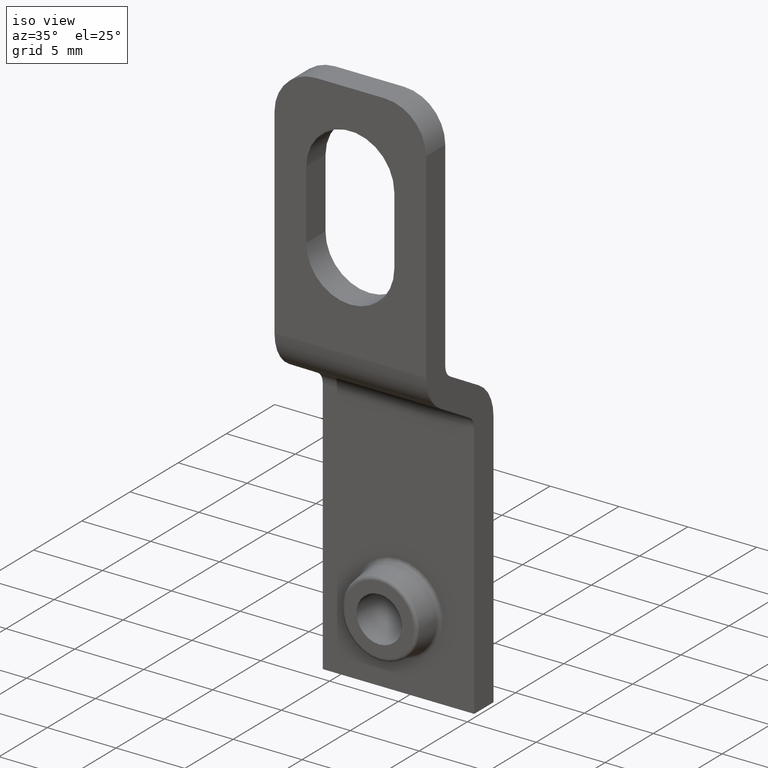
[diagram: clean part render]
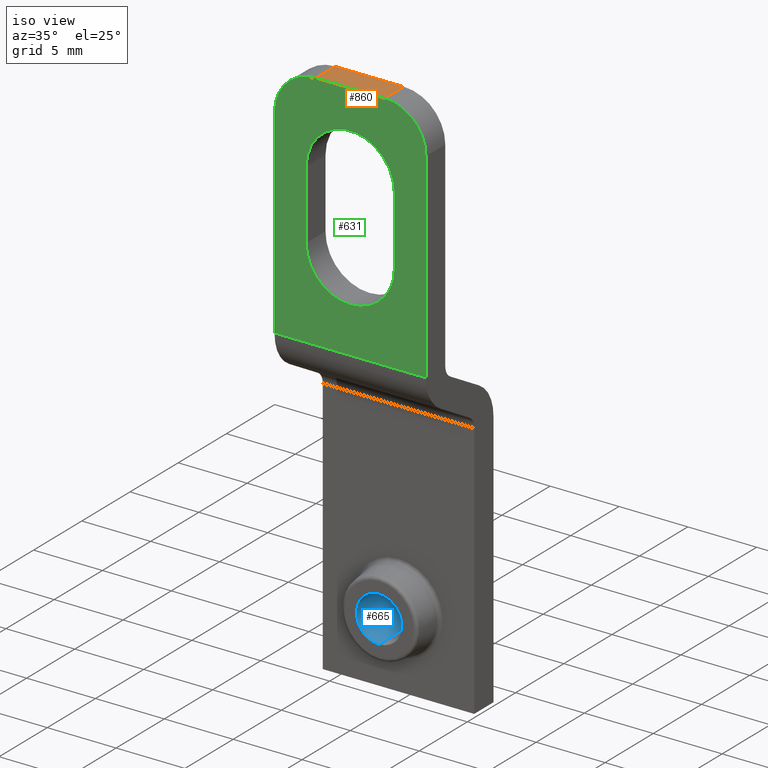
[diagram: same view with three faces highlighted in distinct colors, each labeled with its STEP entity id]
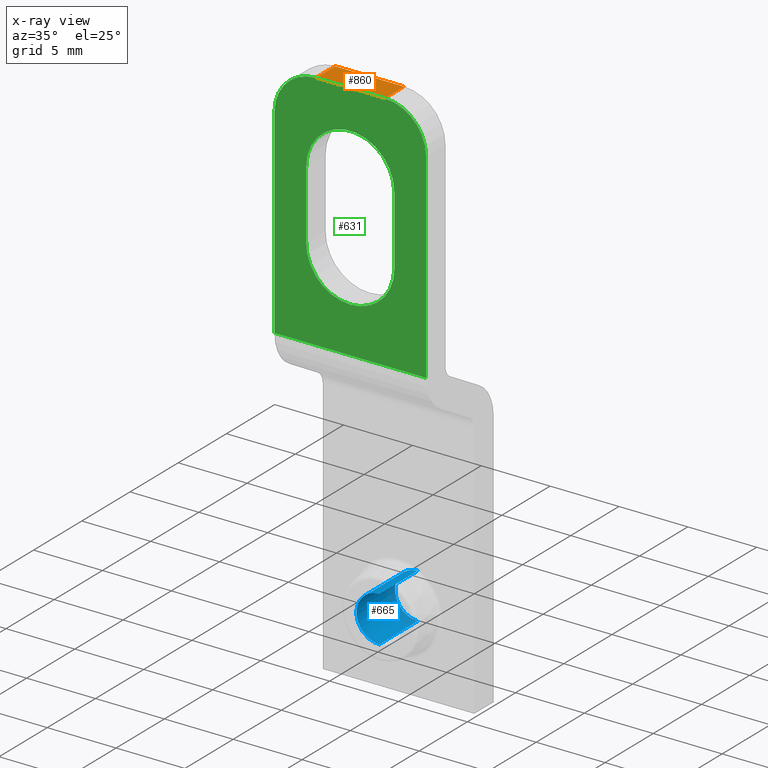
[diagram: x-ray of the same camera — body ghosted, the three highlighted faces saturated]
A machine part, iso view with three faces highlighted in distinct colors.
The next image is the same camera in x-ray (body ghosted, the three faces saturated) — at least one of them is partly hidden behind the body in this view.
Their STEP definitions:

[orange] entity #860 — the highlighted planar face has unit normal (0, 0, -1).
#3 = CARTESIAN_POINT ( 'NONE',  ( -2.500000000000000400, 2.000000000000000000, 36.00615242270662000 ) ) ;
#166 = CARTESIAN_POINT ( 'NONE',  ( 2.499999999999999600, 0.0000000000000000000, 36.00615242270662000 ) ) ;
#167 = DIRECTION ( 'NONE',  ( -1.000000000000000000, -0.0000000000000000000, -0.0000000000000000000 ) ) ;
#168 = VECTOR ( 'NONE', #167, 1000.000000000000000 ) ;
#169 = CARTESIAN_POINT ( 'NONE',  ( 5.500000000000000000, 0.0000000000000000000, 36.00615242270662000 ) ) ;
#170 = LINE ( 'NONE', #169, #168 ) ;
#203 = CARTESIAN_POINT ( 'NONE',  ( -2.500000000000000400, 0.0000000000000000000, 36.00615242270662000 ) ) ;
#218 = CARTESIAN_POINT ( 'NONE',  ( 2.499999999999999600, 2.000000000000000000, 36.00615242270662000 ) ) ;
#246 = DIRECTION ( 'NONE',  ( -1.000000000000000000, -0.0000000000000000000, -0.0000000000000000000 ) ) ;
#247 = VECTOR ( 'NONE', #246, 1000.000000000000000 ) ;
#248 = CARTESIAN_POINT ( 'NONE',  ( 5.500000000000000000, 2.000000000000000000, 36.00615242270662000 ) ) ;
#249 = LINE ( 'NONE', #248, #247 ) ;
#279 = DIRECTION ( 'NONE',  ( 0.0000000000000000000, -1.000000000000000000, 0.0000000000000000000 ) ) ;
#280 = VECTOR ( 'NONE', #279, 1000.000000000000000 ) ;
#281 = CARTESIAN_POINT ( 'NONE',  ( -2.500000000000000400, 2.000000000000000000, 36.00615242270662000 ) ) ;
#282 = LINE ( 'NONE', #281, #280 ) ;
#403 = LINE ( 'NONE', #467, #466 ) ;
#441 = DIRECTION ( 'NONE',  ( -1.000000000000000000, 0.0000000000000000000, -0.0000000000000000000 ) ) ;
#442 = DIRECTION ( 'NONE',  ( 0.0000000000000000000, 0.0000000000000000000, -1.000000000000000000 ) ) ;
#443 = CARTESIAN_POINT ( 'NONE',  ( 5.500000000000000000, 2.000000000000000000, 36.00615242270662000 ) ) ;
#445 = AXIS2_PLACEMENT_3D ( 'NONE', #443, #442, #441 ) ;
#446 = PLANE ( 'NONE',  #445 ) ;
#447 = FACE_OUTER_BOUND ( 'NONE', #858, .T. ) ;
#465 = DIRECTION ( 'NONE',  ( -0.0000000000000000000, 1.000000000000000000, -0.0000000000000000000 ) ) ;
#466 = VECTOR ( 'NONE', #465, 1000.000000000000000 ) ;
#467 = CARTESIAN_POINT ( 'NONE',  ( 2.499999999999999600, 2.000000000000000000, 36.00615242270662000 ) ) ;
#697 = EDGE_CURVE ( 'NONE', #698, #714, #170, .T. ) ;
#698 = VERTEX_POINT ( 'NONE', #166 ) ;
#714 = VERTEX_POINT ( 'NONE', #203 ) ;
#725 = EDGE_CURVE ( 'NONE', #744, #745, #249, .T. ) ;
#744 = VERTEX_POINT ( 'NONE', #218 ) ;
#745 = VERTEX_POINT ( 'NONE', #3 ) ;
#777 = ORIENTED_EDGE ( 'NONE', *, *, #725, .T. ) ;
#778 = ORIENTED_EDGE ( 'NONE', *, *, #779, .T. ) ;
#779 = EDGE_CURVE ( 'NONE', #745, #714, #282, .T. ) ;
#842 = ORIENTED_EDGE ( 'NONE', *, *, #843, .T. ) ;
#843 = EDGE_CURVE ( 'NONE', #698, #744, #403, .T. ) ;
#858 = EDGE_LOOP ( 'NONE', ( #859, #842, #777, #778 ) ) ;
#859 = ORIENTED_EDGE ( 'NONE', *, *, #697, .F. ) ;
#860 = ADVANCED_FACE ( 'NONE', ( #447 ), #446, .F. ) ;

[blue] entity #665 — the highlighted cylindrical surface (edge-blend (fillet) strip) has radius 1.65 mm, axis along (0, -1, 0).
#55 = DIRECTION ( 'NONE',  ( 0.0000000000000000000, -1.000000000000000000, 0.0000000000000000000 ) ) ;
#56 = VECTOR ( 'NONE', #55, 1000.000000000000000 ) ;
#57 = CARTESIAN_POINT ( 'NONE',  ( 0.0000000000000000000, 7.999999999999996400, -1.650000000000000100 ) ) ;
#58 = LINE ( 'NONE', #57, #56 ) ;
#59 = CARTESIAN_POINT ( 'NONE',  ( 0.0000000000000000000, 3.000000000000008000, -1.650000000000000100 ) ) ;
#60 = DIRECTION ( 'NONE',  ( 0.0000000000000000000, 0.0000000000000000000, -1.000000000000000000 ) ) ;
#61 = DIRECTION ( 'NONE',  ( -0.0000000000000000000, 1.000000000000000000, 4.621000202388938200E-017 ) ) ;
#62 = CARTESIAN_POINT ( 'NONE',  ( 0.0000000000000000000, 3.000000000000008000, 0.0000000000000000000 ) ) ;
#63 = AXIS2_PLACEMENT_3D ( 'NONE', #62, #61, #60 ) ;
#64 = CIRCLE ( 'NONE', #63, 1.650000000000000100 ) ;
#65 = AXIS2_PLACEMENT_3D ( 'NONE', #122, #121, #120 ) ;
#66 = CYLINDRICAL_SURFACE ( 'NONE', #65, 1.650000000000000100 ) ;
#67 = FACE_OUTER_BOUND ( 'NONE', #663, .T. ) ;
#68 = DIRECTION ( 'NONE',  ( 0.0000000000000000000, 0.0000000000000000000, -1.000000000000000000 ) ) ;
#69 = DIRECTION ( 'NONE',  ( -0.0000000000000000000, 1.000000000000000000, -9.242000404777876400E-017 ) ) ;
#70 = CARTESIAN_POINT ( 'NONE',  ( 0.0000000000000000000, 7.000000000000004400, 0.0000000000000000000 ) ) ;
#71 = AXIS2_PLACEMENT_3D ( 'NONE', #70, #69, #68 ) ;
#72 = CIRCLE ( 'NONE', #71, 1.650000000000000100 ) ;
#120 = DIRECTION ( 'NONE',  ( 0.0000000000000000000, 0.0000000000000000000, -1.000000000000000000 ) ) ;
#121 = DIRECTION ( 'NONE',  ( 0.0000000000000000000, -1.000000000000000000, 0.0000000000000000000 ) ) ;
#122 = CARTESIAN_POINT ( 'NONE',  ( 0.0000000000000000000, 7.999999999999996400, 0.0000000000000000000 ) ) ;
#209 = DIRECTION ( 'NONE',  ( 0.0000000000000000000, -1.000000000000000000, 0.0000000000000000000 ) ) ;
#210 = VECTOR ( 'NONE', #209, 1000.000000000000000 ) ;
#211 = CARTESIAN_POINT ( 'NONE',  ( 2.020600483806922700E-016, 7.999999999999996400, 1.650000000000000100 ) ) ;
#212 = LINE ( 'NONE', #211, #210 ) ;
#607 = ORIENTED_EDGE ( 'NONE', *, *, #636, .F. ) ;
#608 = VERTEX_POINT ( 'NONE', #950 ) ;
#610 = VERTEX_POINT ( 'NONE', #959 ) ;
#611 = VERTEX_POINT ( 'NONE', #958 ) ;
#612 = ORIENTED_EDGE ( 'NONE', *, *, #707, .T. ) ;
#636 = EDGE_CURVE ( 'NONE', #637, #608, #64, .T. ) ;
#637 = VERTEX_POINT ( 'NONE', #59 ) ;
#638 = EDGE_CURVE ( 'NONE', #610, #637, #58, .T. ) ;
#644 = ORIENTED_EDGE ( 'NONE', *, *, #638, .F. ) ;
#663 = EDGE_LOOP ( 'NONE', ( #668, #612, #607, #644 ) ) ;
#664 = EDGE_CURVE ( 'NONE', #610, #611, #72, .T. ) ;
#665 = ADVANCED_FACE ( 'NONE', ( #67 ), #66, .F. ) ;
#668 = ORIENTED_EDGE ( 'NONE', *, *, #664, .T. ) ;
#707 = EDGE_CURVE ( 'NONE', #611, #608, #212, .T. ) ;
#950 = CARTESIAN_POINT ( 'NONE',  ( 2.020600483806922700E-016, 3.000000000000008000, 1.650000000000000100 ) ) ;
#958 = CARTESIAN_POINT ( 'NONE',  ( 2.020600483806922700E-016, 7.000000000000004400, 1.650000000000000100 ) ) ;
#959 = CARTESIAN_POINT ( 'NONE',  ( 0.0000000000000000000, 7.000000000000004400, -1.650000000000000100 ) ) ;

[green] entity #631 — the highlighted planar face has unit normal (-0, 1, 0).
#14 = DIRECTION ( 'NONE',  ( 0.0000000000000000000, -0.0000000000000000000, 1.000000000000000000 ) ) ;
#15 = DIRECTION ( 'NONE',  ( -0.0000000000000000000, 1.000000000000000000, 0.0000000000000000000 ) ) ;
#17 = CARTESIAN_POINT ( 'NONE',  ( 5.500000000000000000, 0.0000000000000000000, 36.00615242270662000 ) ) ;
#18 = AXIS2_PLACEMENT_3D ( 'NONE', #17, #15, #14 ) ;
#19 = PLANE ( 'NONE',  #18 ) ;
#20 = FACE_BOUND ( 'NONE', #706, .T. ) ;
#21 = FACE_OUTER_BOUND ( 'NONE', #615, .T. ) ;
#78 = DIRECTION ( 'NONE',  ( 0.0000000000000000000, 0.0000000000000000000, 1.000000000000000000 ) ) ;
#79 = DIRECTION ( 'NONE',  ( 0.0000000000000000000, 1.000000000000000000, 0.0000000000000000000 ) ) ;
#80 = CARTESIAN_POINT ( 'NONE',  ( 0.0000000000000000000, 0.0000000000000000000, 25.00000000000000000 ) ) ;
#81 = AXIS2_PLACEMENT_3D ( 'NONE', #80, #79, #78 ) ;
#82 = CIRCLE ( 'NONE', #81, 3.200000000000001500 ) ;
#83 = CARTESIAN_POINT ( 'NONE',  ( 0.0000000000000000000, 0.0000000000000000000, 21.80000000000000100 ) ) ;
#84 = CARTESIAN_POINT ( 'NONE',  ( 3.200000000000000600, 0.0000000000000000000, 25.00000000000000000 ) ) ;
#123 = CARTESIAN_POINT ( 'NONE',  ( 5.500000000000000000, 0.0000000000000000000, 18.46615242270662100 ) ) ;
#127 = DIRECTION ( 'NONE',  ( 0.0000000000000000000, 0.0000000000000000000, -1.000000000000000000 ) ) ;
#128 = DIRECTION ( 'NONE',  ( -0.0000000000000000000, 1.000000000000000000, -0.0000000000000000000 ) ) ;
#129 = CARTESIAN_POINT ( 'NONE',  ( 0.0000000000000000000, 0.0000000000000000000, 30.00000000000000400 ) ) ;
#130 = AXIS2_PLACEMENT_3D ( 'NONE', #129, #128, #127 ) ;
#131 = CIRCLE ( 'NONE', #130, 3.200000000000001500 ) ;
#133 = CARTESIAN_POINT ( 'NONE',  ( -5.500000000000000000, 0.0000000000000000000, 33.00615242270662000 ) ) ;
#134 = CARTESIAN_POINT ( 'NONE',  ( 3.200000000000000600, 0.0000000000000000000, 30.00000000000000400 ) ) ;
#135 = CARTESIAN_POINT ( 'NONE',  ( -3.199999999999999700, 0.0000000000000000000, 30.00000000000000700 ) ) ;
#153 = DIRECTION ( 'NONE',  ( 0.0000000000000000000, 0.0000000000000000000, 1.000000000000000000 ) ) ;
#154 = DIRECTION ( 'NONE',  ( 0.0000000000000000000, -1.000000000000000000, -0.0000000000000000000 ) ) ;
#155 = CARTESIAN_POINT ( 'NONE',  ( 2.499999999999999600, 0.0000000000000000000, 33.00615242270662000 ) ) ;
#156 = AXIS2_PLACEMENT_3D ( 'NONE', #155, #154, #153 ) ;
#157 = CIRCLE ( 'NONE', #156, 3.000000000000002700 ) ;
#161 = DIRECTION ( 'NONE',  ( 0.0000000000000000000, 0.0000000000000000000, 1.000000000000000000 ) ) ;
#162 = DIRECTION ( 'NONE',  ( 0.0000000000000000000, 1.000000000000000000, 0.0000000000000000000 ) ) ;
#163 = CARTESIAN_POINT ( 'NONE',  ( 0.0000000000000000000, 0.0000000000000000000, 25.00000000000000000 ) ) ;
#164 = AXIS2_PLACEMENT_3D ( 'NONE', #163, #162, #161 ) ;
#165 = CIRCLE ( 'NONE', #164, 3.200000000000001500 ) ;
#166 = CARTESIAN_POINT ( 'NONE',  ( 2.499999999999999600, 0.0000000000000000000, 36.00615242270662000 ) ) ;
#167 = DIRECTION ( 'NONE',  ( -1.000000000000000000, -0.0000000000000000000, -0.0000000000000000000 ) ) ;
#168 = VECTOR ( 'NONE', #167, 1000.000000000000000 ) ;
#169 = CARTESIAN_POINT ( 'NONE',  ( 5.500000000000000000, 0.0000000000000000000, 36.00615242270662000 ) ) ;
#170 = LINE ( 'NONE', #169, #168 ) ;
#178 = DIRECTION ( 'NONE',  ( 0.0000000000000000000, 0.0000000000000000000, -1.000000000000000000 ) ) ;
#179 = VECTOR ( 'NONE', #178, 1000.000000000000000 ) ;
#180 = CARTESIAN_POINT ( 'NONE',  ( 3.200000000000000600, 0.0000000000000000000, 30.00000000000000400 ) ) ;
#181 = LINE ( 'NONE', #180, #179 ) ;
#187 = DIRECTION ( 'NONE',  ( -1.000000000000000000, -0.0000000000000000000, -0.0000000000000000000 ) ) ;
#188 = VECTOR ( 'NONE', #187, 1000.000000000000000 ) ;
#189 = CARTESIAN_POINT ( 'NONE',  ( 5.500000000000000000, 0.0000000000000000000, 18.46615242270662100 ) ) ;
#190 = LINE ( 'NONE', #189, #188 ) ;
#191 = CARTESIAN_POINT ( 'NONE',  ( -3.200000000000000600, 0.0000000000000000000, 25.00000000000000000 ) ) ;
#192 = DIRECTION ( 'NONE',  ( -0.0000000000000000000, -0.0000000000000000000, 1.000000000000000000 ) ) ;
#193 = VECTOR ( 'NONE', #192, 1000.000000000000000 ) ;
#194 = CARTESIAN_POINT ( 'NONE',  ( -3.200000000000000600, 0.0000000000000000000, 30.00000000000000400 ) ) ;
#195 = LINE ( 'NONE', #194, #193 ) ;
#203 = CARTESIAN_POINT ( 'NONE',  ( -2.500000000000000400, 0.0000000000000000000, 36.00615242270662000 ) ) ;
#250 = CARTESIAN_POINT ( 'NONE',  ( 5.500000000000000000, 0.0000000000000000000, 36.00615242270662000 ) ) ;
#251 = LINE ( 'NONE', #250, #310 ) ;
#252 = CARTESIAN_POINT ( 'NONE',  ( 5.500000000000000000, 0.0000000000000000000, 33.00615242270662000 ) ) ;
#253 = CARTESIAN_POINT ( 'NONE',  ( -5.500000000000000000, 0.0000000000000000000, 18.46615242270662100 ) ) ;
#289 = DIRECTION ( 'NONE',  ( 0.0000000000000000000, 0.0000000000000000000, 1.000000000000000000 ) ) ;
#290 = DIRECTION ( 'NONE',  ( 0.0000000000000000000, -1.000000000000000000, -0.0000000000000000000 ) ) ;
#291 = CARTESIAN_POINT ( 'NONE',  ( -2.500000000000000400, 0.0000000000000000000, 33.00615242270662000 ) ) ;
#292 = AXIS2_PLACEMENT_3D ( 'NONE', #291, #290, #289 ) ;
#293 = CIRCLE ( 'NONE', #292, 3.000000000000002700 ) ;
#294 = DIRECTION ( 'NONE',  ( 0.0000000000000000000, 0.0000000000000000000, -1.000000000000000000 ) ) ;
#295 = VECTOR ( 'NONE', #294, 1000.000000000000000 ) ;
#296 = CARTESIAN_POINT ( 'NONE',  ( -5.500000000000000000, 0.0000000000000000000, 36.00615242270662000 ) ) ;
#297 = LINE ( 'NONE', #296, #295 ) ;
#309 = DIRECTION ( 'NONE',  ( 0.0000000000000000000, 0.0000000000000000000, -1.000000000000000000 ) ) ;
#310 = VECTOR ( 'NONE', #309, 1000.000000000000000 ) ;
#615 = EDGE_LOOP ( 'NONE', ( #760, #687, #710, #717, #722, #723 ) ) ;
#631 = ADVANCED_FACE ( 'NONE', ( #21, #20 ), #19, .F. ) ;
#657 = VERTEX_POINT ( 'NONE', #84 ) ;
#659 = VERTEX_POINT ( 'NONE', #83 ) ;
#660 = EDGE_CURVE ( 'NONE', #657, #659, #82, .T. ) ;
#678 = ORIENTED_EDGE ( 'NONE', *, *, #682, .T. ) ;
#679 = VERTEX_POINT ( 'NONE', #135 ) ;
#680 = VERTEX_POINT ( 'NONE', #134 ) ;
#681 = VERTEX_POINT ( 'NONE', #133 ) ;
#682 = EDGE_CURVE ( 'NONE', #679, #680, #131, .T. ) ;
#685 = ORIENTED_EDGE ( 'NONE', *, *, #690, .T. ) ;
#686 = VERTEX_POINT ( 'NONE', #123 ) ;
#687 = ORIENTED_EDGE ( 'NONE', *, *, #704, .T. ) ;
#690 = EDGE_CURVE ( 'NONE', #680, #657, #181, .T. ) ;
#691 = ORIENTED_EDGE ( 'NONE', *, *, #660, .T. ) ;
#697 = EDGE_CURVE ( 'NONE', #698, #714, #170, .T. ) ;
#698 = VERTEX_POINT ( 'NONE', #166 ) ;
#699 = ORIENTED_EDGE ( 'NONE', *, *, #700, .T. ) ;
#700 = EDGE_CURVE ( 'NONE', #659, #718, #165, .T. ) ;
#704 = EDGE_CURVE ( 'NONE', #763, #698, #157, .T. ) ;
#706 = EDGE_LOOP ( 'NONE', ( #678, #685, #691, #699, #719 ) ) ;
#710 = ORIENTED_EDGE ( 'NONE', *, *, #697, .T. ) ;
#714 = VERTEX_POINT ( 'NONE', #203 ) ;
#716 = EDGE_CURVE ( 'NONE', #718, #679, #195, .T. ) ;
#717 = ORIENTED_EDGE ( 'NONE', *, *, #769, .T. ) ;
#718 = VERTEX_POINT ( 'NONE', #191 ) ;
#719 = ORIENTED_EDGE ( 'NONE', *, *, #716, .T. ) ;
#720 = EDGE_CURVE ( 'NONE', #686, #762, #190, .T. ) ;
#722 = ORIENTED_EDGE ( 'NONE', *, *, #768, .T. ) ;
#723 = ORIENTED_EDGE ( 'NONE', *, *, #720, .F. ) ;
#760 = ORIENTED_EDGE ( 'NONE', *, *, #764, .F. ) ;
#762 = VERTEX_POINT ( 'NONE', #253 ) ;
#763 = VERTEX_POINT ( 'NONE', #252 ) ;
#764 = EDGE_CURVE ( 'NONE', #763, #686, #251, .T. ) ;
#768 = EDGE_CURVE ( 'NONE', #681, #762, #297, .T. ) ;
#769 = EDGE_CURVE ( 'NONE', #714, #681, #293, .T. ) ;